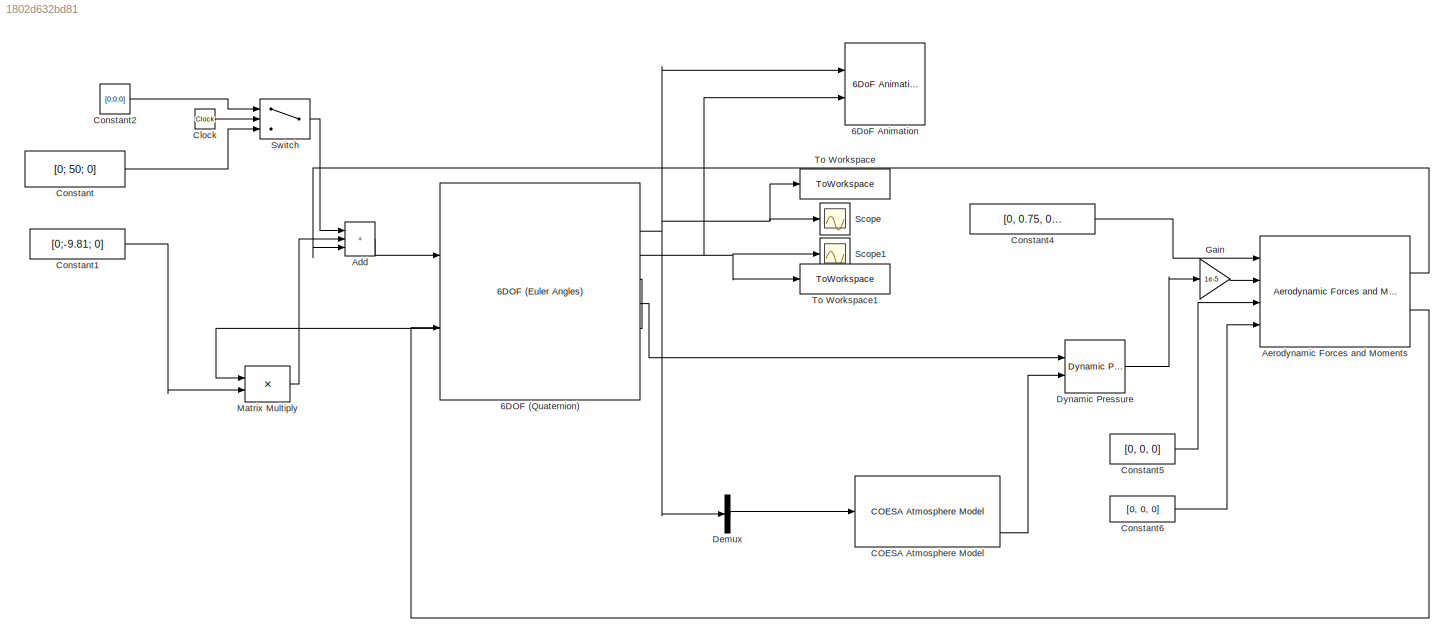
MODEL slx_1802d632bd81
KIND model
CONFIG AbsTol = auto
CONFIG EnableMultiTasking = off
CONFIG FixedStep = 0.01
CONFIG MaxStep = auto
CONFIG MinStep = auto
CONFIG RelTol = 1e-3
CONFIG SampleTimeConstraint = Unconstrained
CONFIG SolverName = FixedStepAuto
CONFIG StartTime = 0.0
CONFIG StopTime = 10.0
BLOCK [Reference] 6DOF (Quaternion)  REF=shared6dof/6DOF (Euler Angles)
  Ports = [2, 8]
  SourceBlock = shared6dof/6DOF (Euler Angles)
  SourceProductBaseCode = AE,PW,MT,UV,VE,VP
  SourceType = 6DOF EoM (Body Axis)
BLOCK [Reference] 6DoF Animation  REF=aerolibanim/6DoF Animation
  Ports = [2]
  SourceBlock = aerolibanim/6DoF Animation
  SourceProductBaseCode = AE
  SourceType = 6DoF_Animation
BLOCK [Sum] Add
  IconShape = rectangular
  Inputs = +++
  Ports = [3, 1]
BLOCK [Reference] Aerodynamic Forces and Moments   REF=aerolibadyn/Aerodynamic
Forces and Moments 
  Ports = [4, 2]
  SourceBlock = aerolibadyn/Aerodynamic\nForces and Moments
  SourceProductBaseCode = AE
  SourceType = Aerodynamic Forces and Moments
BLOCK [Reference] COESA Atmosphere Model  REF=aerolibatmos2/COESA Atmosphere Model
  Ports = [1, 4]
  SourceBlock = aerolibatmos2/COESA Atmosphere Model
  SourceProductBaseCode = AE
  SourceType = Atmosphere Model
BLOCK [Clock] Clock
BLOCK [Constant] Constant
  Value = [0; 50; 0]
BLOCK [Constant] Constant1
  Value = [0;-9.81; 0]
BLOCK [Constant] Constant2
  Value = [0;0;0]
BLOCK [Constant] Constant4
  Value = [0, 0.75, 0, 0, 0,0]
BLOCK [Constant] Constant5
  Value = [0, 0, 0]
BLOCK [Constant] Constant6
  Value = [0, 0, 0]
BLOCK [Demux] Demux
  Outputs = 3
  Ports = [1, 3]
BLOCK [Reference] Dynamic Pressure  REF=aerolibasang/Dynamic Pressure
  Ports = [2, 1]
  SourceBlock = aerolibasang/Dynamic Pressure
  SourceProductBaseCode = AE
  SourceType = Dynamic Pressure
BLOCK [Gain] Gain
  Gain = 1e-5
BLOCK [Product] Matrix Multiply
  Multiplication = Matrix(*)
  Ports = [2, 1]
BLOCK [Scope] Scope
  Floating = off
  NumInputPorts = 1
  Ports = [1]
  ScopeSpecificationString = Simulink.scopes.TimeScopeBlockCfg('CurrentConfiguration', extmgr.ConfigurationSet(extmgr.Configuration('Core','General UI',true),extmgr.Configuration('Core','Source UI',true),extmgr.Configuration('Sources','WiredSimulink',true),extmgr.Configuration('Visuals','Time Domain',true,'SerializedDisplays',{struct('MinYLimReal','-33.08905','MaxYLimReal','60.19304','YLabelReal','','MinYLimMag','0.00000','Ma...<+1489ch>
BLOCK [Scope] Scope1
  Floating = off
  NumInputPorts = 1
  Ports = [1]
  ScopeSpecificationString = Simulink.scopes.TimeScopeBlockCfg('CurrentConfiguration', extmgr.ConfigurationSet(extmgr.Configuration('Core','General UI',true),extmgr.Configuration('Core','Source UI',true),extmgr.Configuration('Sources','WiredSimulink',true,'DataLoggingVariableName','ScopeData1'),extmgr.Configuration('Visuals','Time Domain',true,'SerializedDisplays',{struct('MinYLimReal','-0.0125','MaxYLimReal','0.1125','YLabel...<+1448ch>
BLOCK [Switch] Switch
  Criteria = u2 > Threshold
  InputSameDT = off
  SaturateOnIntegerOverflow = off
  Threshold = 1
BLOCK [ToWorkspace] To Workspace
  FixptAsFi = on
  MaxDataPoints = inf
  Ports = [1]
  SampleTime = -1
  SaveFormat = Timeseries
  VariableName = position
BLOCK [ToWorkspace] To Workspace1
  FixptAsFi = on
  MaxDataPoints = inf
  Ports = [1]
  SampleTime = -1
  SaveFormat = Timeseries
  VariableName = euler_angles
NET 6DOF (Quaternion):2 -> 6DoF Animation:1, Demux:1, Scope:1, To Workspace:1
NET 6DOF (Quaternion):3 -> 6DoF Animation:2, Scope1:1, To Workspace1:1
LINE 6DOF (Quaternion):4 -> Matrix Multiply:1
LINE 6DOF (Quaternion):5 -> Dynamic Pressure:1
LINE Add:1 -> 6DOF (Quaternion):1
LINE Aerodynamic Forces and Moments :1 -> Add:3
LINE Aerodynamic Forces and Moments :2 -> 6DOF (Quaternion):2
LINE COESA Atmosphere Model:4 -> Dynamic Pressure:2
LINE Clock:1 -> Switch:2
LINE Constant1:1 -> Matrix Multiply:2
LINE Constant2:1 -> Switch:1
LINE Constant4:1 -> Aerodynamic Forces and Moments :1
LINE Constant5:1 -> Aerodynamic Forces and Moments :3
LINE Constant6:1 -> Aerodynamic Forces and Moments :4
LINE Constant:1 -> Switch:3
LINE Demux:2 -> COESA Atmosphere Model:1
LINE Dynamic Pressure:1 -> Gain:1
LINE Gain:1 -> Aerodynamic Forces and Moments :2
LINE Matrix Multiply:1 -> Add:2
LINE Switch:1 -> Add:1
note: NET lines group one-source signal fan-out (src -> all destinations, sorted); 1:1 wires keep LINE
